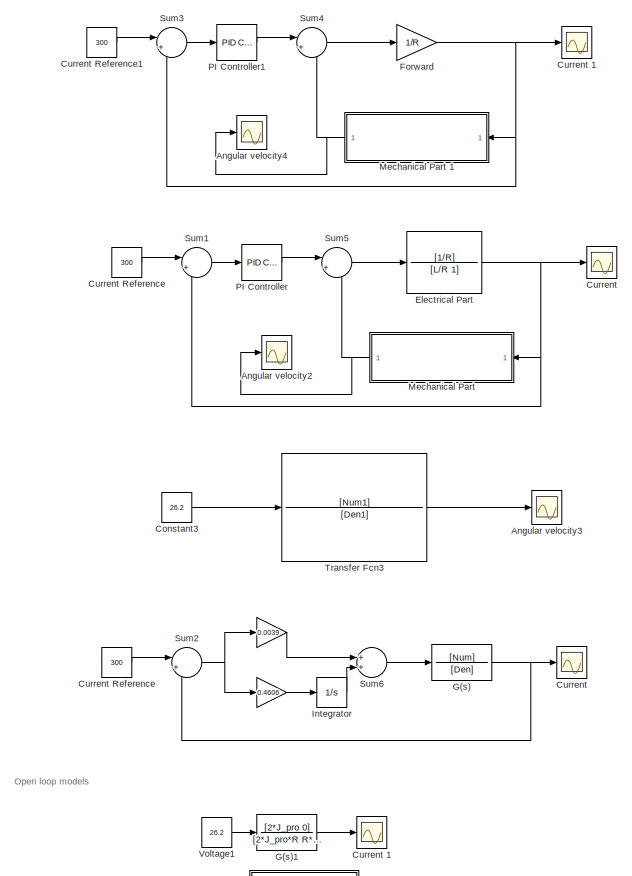
[diagram: root canvas - part 1/2, full width, top band]
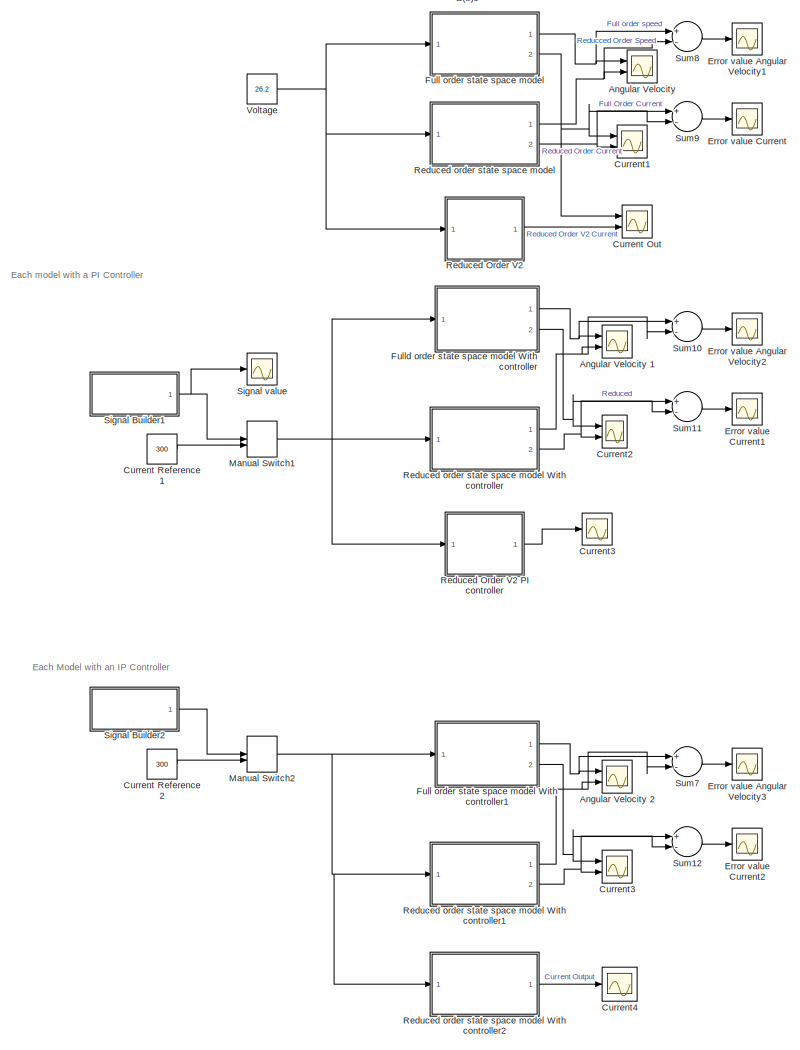
[diagram: root canvas - part 2/2, full width, bottom band]
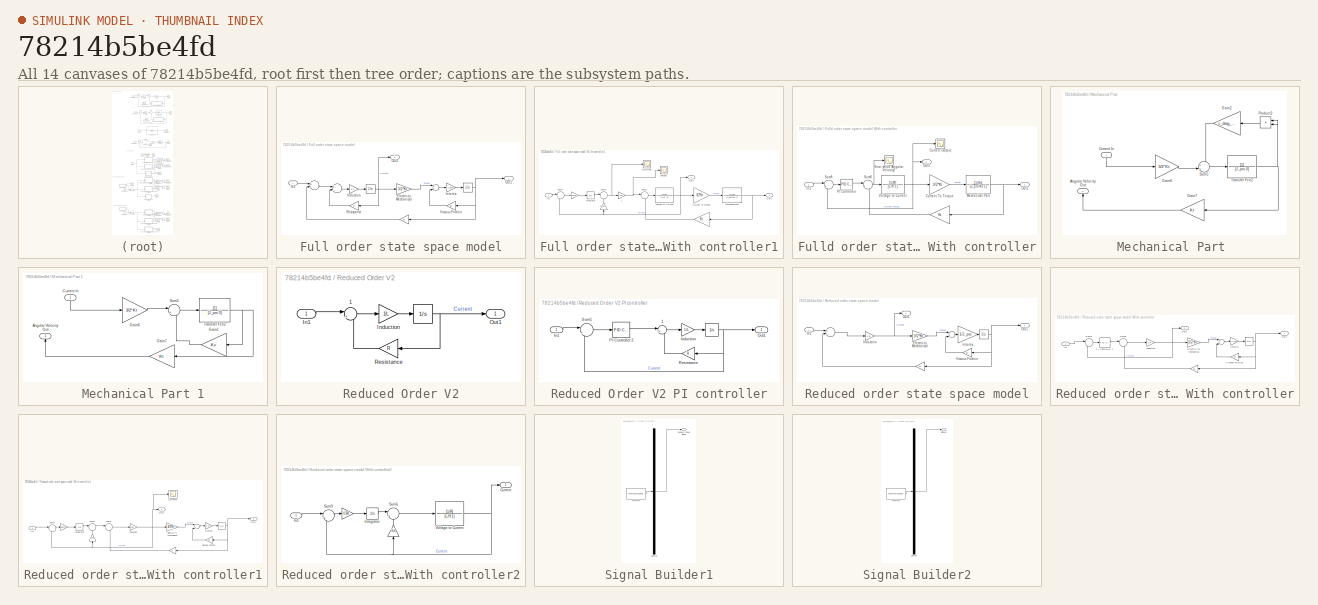
[diagram: thumbnail index - all 14 canvases of the model, root first then tree order]
MODEL slx_78214b5be4fd
KIND model
CONFIG AbsTol = auto
CONFIG FixedStep = 0.001
CONFIG MaxStep = auto
CONFIG MinStep = auto
CONFIG RelTol = 1e-3
CONFIG SampleTimeConstraint = Unconstrained
CONFIG Solver = FixedStepAuto
CONFIG SolverMode = Auto
CONFIG SolverName = FixedStepAuto
CONFIG StartTime = 0.0
CONFIG StopTime = 10
BLOCK [Gain]  
  Gain = 0.0039
  OutDataTypeStr = Inherit: Inherit via internal rule
  ParamDataTypeStr = Inherit: Inherit via internal rule
  SaturateOnIntegerOverflow = off
BLOCK [Scope]  Current3
  Ports = [1]
  ScopeSpecificationString = Simulink.scopes.TimeScopeBlockCfg('CurrentConfiguration', extmgr.ConfigurationSet(extmgr.Configuration('Core','General UI',true),extmgr.Configuration('Core','Source UI',true),extmgr.Configuration('Sources','WiredSimulink',true,'DataLoggingVariableName','ScopeData7'),extmgr.Configuration('Visuals','Time Domain',true,'SerializedDisplays',{struct('MinYLimReal','-14.83516','MaxYLimReal','328.84615','Y...<+1477ch>
BLOCK [Scope] Angular Velocity  
  NumInputPorts = 2
  Ports = [2]
  ScopeSpecificationString = Simulink.scopes.TimeScopeBlockCfg('CurrentConfiguration', extmgr.ConfigurationSet(extmgr.Configuration('Core','General UI',true,'FigureColor',[1 1 1]),extmgr.Configuration('Core','Source UI',true),extmgr.Configuration('Sources','WiredSimulink',true,'DataLoggingVariableName','ScopeData1'),extmgr.Configuration('Visuals','Time Domain',true,'SerializedDisplays',{struct('MinYLimReal','-13.43019','MaxYL...<+1726ch>
BLOCK [Scope] Angular Velocity 1
  NumInputPorts = 2
  Ports = [2]
  ScopeSpecificationString = Simulink.scopes.TimeScopeBlockCfg('CurrentConfiguration', extmgr.ConfigurationSet(extmgr.Configuration('Core','General UI',true),extmgr.Configuration('Core','Source UI',true),extmgr.Configuration('Sources','WiredSimulink',true,'DataLoggingVariableName','ScopeData1'),extmgr.Configuration('Visuals','Time Domain',true,'SerializedDisplays',{struct('MinYLimReal','-70.97575','MaxYLimReal','638.78175','Y...<+1527ch>
BLOCK [Scope] Angular Velocity 2
  NumInputPorts = 2
  Ports = [2]
  ScopeSpecificationString = Simulink.scopes.TimeScopeBlockCfg('CurrentConfiguration', extmgr.ConfigurationSet(extmgr.Configuration('Core','General UI',true),extmgr.Configuration('Core','Source UI',true),extmgr.Configuration('Sources','WiredSimulink',true,'DataLoggingVariableName','ScopeData1'),extmgr.Configuration('Visuals','Time Domain',true,'SerializedDisplays',{struct('MinYLimReal','-29.12331','MaxYLimReal','262.1098','YL...<+1501ch>
BLOCK [Scope] Angular velocity2
  Ports = [1]
  ScopeSpecificationString = Simulink.scopes.TimeScopeBlockCfg('CurrentConfiguration', extmgr.ConfigurationSet(extmgr.Configuration('Core','General UI',true),extmgr.Configuration('Core','Source UI',true),extmgr.Configuration('Sources','WiredSimulink',true,'DataLoggingVariableName','ScopeData7'),extmgr.Configuration('Visuals','Time Domain',true,'SerializedDisplays',{struct('MinYLimReal','-8.90635','MaxYLimReal','80.15715','YLa...<+1439ch>
BLOCK [Scope] Angular velocity3
  Ports = [1]
  ScopeSpecificationString = Simulink.scopes.TimeScopeBlockCfg('CurrentConfiguration', extmgr.ConfigurationSet(extmgr.Configuration('Core','General UI',true),extmgr.Configuration('Core','Source UI',true),extmgr.Configuration('Sources','WiredSimulink',true,'DataLoggingVariableName','ScopeData2'),extmgr.Configuration('Visuals','Time Domain',true,'SerializedDisplays',{struct('MinYLimReal','-466.71302','MaxYLimReal','4200.41714',...<+1496ch>
BLOCK [Scope] Angular velocity4
  Ports = [1]
  ScopeSpecificationString = C++SS(StrPVP('SaveName','ScopeData5'),StrPVP('LimitDataPoints','on'),StrPVP('DataFormat','Array'),StrPVP('Decimation','1'),StrPVP('BlockParamSampleInput','off'))
BLOCK [Constant] Constant3
  Value = 26.2
BLOCK [Scope] Current 
  Ports = [1]
  ScopeSpecificationString = Simulink.scopes.TimeScopeBlockCfg('CurrentConfiguration', extmgr.ConfigurationSet(extmgr.Configuration('Core','General UI',true),extmgr.Configuration('Core','Source UI',true),extmgr.Configuration('Sources','WiredSimulink',true,'DataLoggingVariableName','ScopeData1','DataLoggingLimitDataPoints',true,'DataLoggingSaveFormat','Array','DataLoggingDecimation','1','DataLoggingDecimateData',true),extmgr.C...<+1527ch>
BLOCK [Scope] Current 1
  Ports = [1]
  ScopeSpecificationString = C++SS(StrPVP('SaveName','ScopeData8'),StrPVP('LimitDataPoints','on'),StrPVP('DataFormat','Array'),StrPVP('Decimation','1'),StrPVP('BlockParamSampleInput','off'))
BLOCK [Scope] Current Out
  NumInputPorts = 2
  Ports = [2]
  ScopeSpecificationString = Simulink.scopes.TimeScopeBlockCfg('CurrentConfiguration', extmgr.ConfigurationSet(extmgr.Configuration('Core','General UI',true,'FigureColor',[1 1 1]),extmgr.Configuration('Core','Source UI',true),extmgr.Configuration('Sources','WiredSimulink',true,'DataLoggingVariableName','ScopeData6'),extmgr.Configuration('Visuals','Time Domain',true,'SerializedDisplays',{struct('MinYLimReal','-59.90528','MaxYL...<+1703ch>
BLOCK [Constant] Current Reference
  Value = 300
BLOCK [Constant] Current Reference 
  Value = 300
BLOCK [Constant] Current Reference 1
  Value = 300
BLOCK [Constant] Current Reference 2
  Value = 300
BLOCK [Constant] Current Reference1
  Value = 300
BLOCK [Scope] Current1
  NumInputPorts = 2
  Ports = [2]
  ScopeSpecificationString = Simulink.scopes.TimeScopeBlockCfg('CurrentConfiguration', extmgr.ConfigurationSet(extmgr.Configuration('Core','General UI',true,'FigureColor',[1 1 1]),extmgr.Configuration('Core','Source UI',true),extmgr.Configuration('Sources','WiredSimulink',true,'DataLoggingVariableName','ScopeData1'),extmgr.Configuration('Visuals','Time Domain',true,'SerializedDisplays',{struct('MinYLimReal','-55.79946','MaxYL...<+1694ch>
BLOCK [Scope] Current2
  NumInputPorts = 2
  Ports = [2]
  ScopeSpecificationString = Simulink.scopes.TimeScopeBlockCfg('CurrentConfiguration', extmgr.ConfigurationSet(extmgr.Configuration('Core','General UI',true),extmgr.Configuration('Core','Source UI',true),extmgr.Configuration('Sources','WiredSimulink',true,'DataLoggingVariableName','ScopeData2'),extmgr.Configuration('Visuals','Time Domain',true,'SerializedDisplays',{struct('MinYLimReal','-59.27537','MaxYLimReal','400.97136','Y...<+2155ch>
BLOCK [Scope] Current3
  NumInputPorts = 2
  Ports = [2]
  ScopeSpecificationString = Simulink.scopes.TimeScopeBlockCfg('CurrentConfiguration', extmgr.ConfigurationSet(extmgr.Configuration('Core','General UI',true),extmgr.Configuration('Core','Source UI',true),extmgr.Configuration('Sources','WiredSimulink',true,'DataLoggingVariableName','ScopeData2'),extmgr.Configuration('Visuals','Time Domain',true,'SerializedDisplays',{struct('MinYLimReal','-34.47602','MaxYLimReal','310.28415','Y...<+1585ch>
BLOCK [Scope] Current4
  Ports = [1]
  ScopeSpecificationString = Simulink.scopes.TimeScopeBlockCfg('CurrentConfiguration', extmgr.ConfigurationSet(extmgr.Configuration('Core','General UI',true,'FigureColor',[1 1 1]),extmgr.Configuration('Core','Source UI',true),extmgr.Configuration('Sources','WiredSimulink',true,'DataLoggingVariableName','ScopeData5'),extmgr.Configuration('Visuals','Time Domain',true,'SerializedDisplays',{struct('MinYLimReal','-37.5','MaxYLimRe...<+1641ch>
BLOCK [TransferFcn] Electrical Part
  Denominator = [L/R 1]
  Numerator = [1/R]
BLOCK [Scope] Error value Angular Velocity1
  Ports = [1]
  ScopeSpecificationString = Simulink.scopes.TimeScopeBlockCfg('CurrentConfiguration', extmgr.ConfigurationSet(extmgr.Configuration('Core','General UI',true),extmgr.Configuration('Core','Source UI',true),extmgr.Configuration('Sources','WiredSimulink',true,'DataLoggingVariableName','ScopeData3','DataLoggingLimitDataPoints',true,'DataLoggingSaveFormat','Array','DataLoggingDecimation','1','DataLoggingDecimateData',true),extmgr.C...<+1580ch>
BLOCK [Scope] Error value Angular Velocity2
  Ports = [1]
  ScopeSpecificationString = Simulink.scopes.TimeScopeBlockCfg('CurrentConfiguration', extmgr.ConfigurationSet(extmgr.Configuration('Core','General UI',true),extmgr.Configuration('Core','Source UI',true),extmgr.Configuration('Sources','WiredSimulink',true,'DataLoggingVariableName','ScopeData6','DataLoggingLimitDataPoints',true,'DataLoggingSaveFormat','Array','DataLoggingDecimation','1','DataLoggingDecimateData',true),extmgr.C...<+1516ch>
BLOCK [Scope] Error value Angular Velocity3
  Ports = [1]
  ScopeSpecificationString = Simulink.scopes.TimeScopeBlockCfg('CurrentConfiguration', extmgr.ConfigurationSet(extmgr.Configuration('Core','General UI',true),extmgr.Configuration('Core','Source UI',true),extmgr.Configuration('Sources','WiredSimulink',true,'DataLoggingVariableName','ScopeData3'),extmgr.Configuration('Visuals','Time Domain',true,'SerializedDisplays',{struct('MinYLimReal','-0.02945','MaxYLimReal','0.00327','YLab...<+1388ch>
BLOCK [Scope] Error value Current
  Ports = [1]
  ScopeSpecificationString = Simulink.scopes.TimeScopeBlockCfg('CurrentConfiguration', extmgr.ConfigurationSet(extmgr.Configuration('Core','General UI',true),extmgr.Configuration('Core','Source UI',true),extmgr.Configuration('Sources','WiredSimulink',true,'DataLoggingVariableName','ScopeData4','DataLoggingLimitDataPoints',true,'DataLoggingSaveFormat','Array','DataLoggingDecimation','1','DataLoggingDecimateData',true),extmgr.C...<+1571ch>
BLOCK [Scope] Error value Current1
  Ports = [1]
  ScopeSpecificationString = Simulink.scopes.TimeScopeBlockCfg('CurrentConfiguration', extmgr.ConfigurationSet(extmgr.Configuration('Core','General UI',true),extmgr.Configuration('Core','Source UI',true),extmgr.Configuration('Sources','WiredSimulink',true,'DataLoggingVariableName','ScopeData7','DataLoggingLimitDataPoints',true,'DataLoggingSaveFormat','Array','DataLoggingDecimation','1','DataLoggingDecimateData',true),extmgr.C...<+1514ch>
BLOCK [Scope] Error value Current2
  Ports = [1]
  ScopeSpecificationString = Simulink.scopes.TimeScopeBlockCfg('CurrentConfiguration', extmgr.ConfigurationSet(extmgr.Configuration('Core','General UI',true),extmgr.Configuration('Core','Source UI',true),extmgr.Configuration('Sources','WiredSimulink',true,'DataLoggingVariableName','ScopeData4'),extmgr.Configuration('Visuals','Time Domain',true,'SerializedDisplays',{struct('MinYLimReal','-26.46321','MaxYLimReal','16.23785','YL...<+1414ch>
BLOCK [Gain] Forward
  Gain = 1/R
  OutDataTypeStr = Inherit: Inherit via internal rule
  ParamDataTypeStr = Inherit: Inherit via internal rule
  SaturateOnIntegerOverflow = off
BLOCK [SubSystem] Full order state space model
  Ports = [1, 2]
  RequestExecContextInheritance = off
  Variant = off
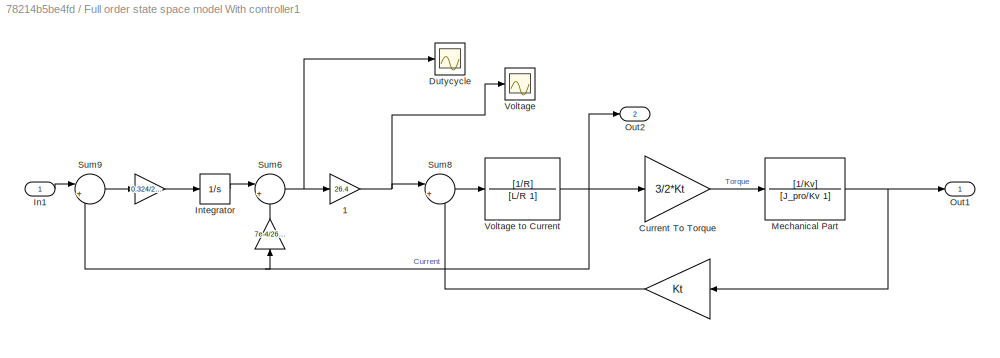
BLOCK [SubSystem] Full order state space model With controller1
  Ports = [1, 2]
  RequestExecContextInheritance = off
  Variant = off
BLOCK [Gain] Full order state space model With controller1/ 
  Gain = 7e-4/26.4
  OutDataTypeStr = Inherit: Inherit via internal rule
  ParamDataTypeStr = Inherit: Inherit via internal rule
  SaturateOnIntegerOverflow = off
BLOCK [Gain] Full order state space model With controller1/                
  Gain = Kt
  OutDataTypeStr = Inherit: Inherit via internal rule
  ParamDataTypeStr = Inherit: Inherit via internal rule
  SaturateOnIntegerOverflow = off
BLOCK [Gain] Full order state space model With controller1/ 1
  Gain = 26.4
  OutDataTypeStr = Inherit: Inherit via internal rule
  ParamDataTypeStr = Inherit: Inherit via internal rule
  SaturateOnIntegerOverflow = off
BLOCK [Gain] Full order state space model With controller1/Current To Torque 
  Gain = 3/2*Kt
  OutDataTypeStr = Inherit: Inherit via internal rule
  ParamDataTypeStr = Inherit: Inherit via internal rule
  SaturateOnIntegerOverflow = off
BLOCK [Scope] Full order state space model With controller1/Dutycycle
  Ports = [1]
  ScopeSpecificationString = Simulink.scopes.TimeScopeBlockCfg('CurrentConfiguration', extmgr.ConfigurationSet(extmgr.Configuration('Core','General UI',true),extmgr.Configuration('Core','Source UI',true),extmgr.Configuration('Sources','WiredSimulink',true,'DataLoggingVariableName','ScopeData3'),extmgr.Configuration('Visuals','Time Domain',true,'SerializedDisplays',{struct('MinYLimReal','-0.08224','MaxYLimReal','0.74019','YLab...<+1467ch>
BLOCK [Inport] Full order state space model With controller1/In1
  IconDisplay = Port number
BLOCK [Integrator] Full order state space model With controller1/Integrator
  Ports = [1, 1]
BLOCK [TransferFcn] Full order state space model With controller1/Mechanical Part 
  Denominator = [J_pro/Kv 1]
  Numerator = [1/Kv]
BLOCK [Outport] Full order state space model With controller1/Out1
  IconDisplay = Port number
BLOCK [Outport] Full order state space model With controller1/Out2
  IconDisplay = Port number
  Port = 2
BLOCK [Sum] Full order state space model With controller1/Sum6
  IconShape = round
  InputSameDT = off
  Inputs = |+-
  OutDataTypeStr = Inherit: Inherit via internal rule
  Ports = [2, 1]
  SaturateOnIntegerOverflow = off
BLOCK [Sum] Full order state space model With controller1/Sum8
  IconShape = round
  InputSameDT = off
  Inputs = |+-
  OutDataTypeStr = Inherit: Inherit via internal rule
  Ports = [2, 1]
  SaturateOnIntegerOverflow = off
BLOCK [Sum] Full order state space model With controller1/Sum9
  IconShape = round
  InputSameDT = off
  Inputs = |+-
  OutDataTypeStr = Inherit: Inherit via internal rule
  Ports = [2, 1]
  SaturateOnIntegerOverflow = off
BLOCK [Scope] Full order state space model With controller1/Voltage
  Ports = [1]
  ScopeSpecificationString = Simulink.scopes.TimeScopeBlockCfg('CurrentConfiguration', extmgr.ConfigurationSet(extmgr.Configuration('Core','General UI',true),extmgr.Configuration('Core','Source UI',true),extmgr.Configuration('Sources','WiredSimulink',true,'DataLoggingVariableName','ScopeData2'),extmgr.Configuration('Visuals','Time Domain',true,'SerializedDisplays',{struct('MinYLimReal','-2.37144','MaxYLimReal','21.34294','YLa...<+1479ch>
BLOCK [TransferFcn] Full order state space model With controller1/Voltage to Current 
  Denominator = [L/R 1]
  Numerator = [1/R]
BLOCK [Sum] Full order state space model/  
  InputSameDT = off
  Inputs = +-
  OutDataTypeStr = Inherit: Inherit via internal rule
  Ports = [2, 1]
  SaturateOnIntegerOverflow = off
BLOCK [Sum] Full order state space model/   
  InputSameDT = off
  Inputs = +-
  OutDataTypeStr = Inherit: Inherit via internal rule
  Ports = [2, 1]
  SaturateOnIntegerOverflow = off
BLOCK [Sum] Full order state space model/    
  InputSameDT = off
  Inputs = +-
  OutDataTypeStr = Inherit: Inherit via internal rule
  Ports = [2, 1]
  SaturateOnIntegerOverflow = off
BLOCK [Integrator] Full order state space model/                          
  Ports = [1, 1]
BLOCK [Gain] Full order state space model/                            
  Gain = Kt
  OutDataTypeStr = Inherit: Inherit via internal rule
  ParamDataTypeStr = Inherit: Inherit via internal rule
  SaturateOnIntegerOverflow = off
BLOCK [Integrator] Full order state space model/                                     
  Ports = [1, 1]
BLOCK [Gain] Full order state space model/Electric to Mechanical
  Gain = 3/2*Kt
  OutDataTypeStr = Inherit: Inherit via internal rule
  ParamDataTypeStr = Inherit: Inherit via internal rule
  SaturateOnIntegerOverflow = off
BLOCK [Inport] Full order state space model/In1
  IconDisplay = Port number
BLOCK [Gain] Full order state space model/Induction
  Gain = 1/L
  OutDataTypeStr = Inherit: Inherit via internal rule
  ParamDataTypeStr = Inherit: Inherit via internal rule
  SaturateOnIntegerOverflow = off
BLOCK [Gain] Full order state space model/Intertia
  Gain = 1/J_pro
  OutDataTypeStr = Inherit: Inherit via internal rule
  ParamDataTypeStr = Inherit: Inherit via internal rule
  SaturateOnIntegerOverflow = off
BLOCK [Outport] Full order state space model/Out1
  IconDisplay = Port number
BLOCK [Outport] Full order state space model/Out2
  IconDisplay = Port number
  Port = 2
BLOCK [Gain] Full order state space model/Resistance
  Gain = R
  OutDataTypeStr = Inherit: Inherit via internal rule
  ParamDataTypeStr = Inherit: Inherit via internal rule
  SaturateOnIntegerOverflow = off
BLOCK [Gain] Full order state space model/Viscous Friction
  Gain = Kv
  OutDataTypeStr = Inherit: Inherit via internal rule
  ParamDataTypeStr = Inherit: Inherit via internal rule
  SaturateOnIntegerOverflow = off
BLOCK [SubSystem] Fulld order state space model With controller
  Ports = [1, 2]
  RequestExecContextInheritance = off
  Variant = off
BLOCK [Gain] Fulld order state space model With controller/                
  Gain = Kt
  OutDataTypeStr = Inherit: Inherit via internal rule
  ParamDataTypeStr = Inherit: Inherit via internal rule
  SaturateOnIntegerOverflow = off
BLOCK [Scope] Fulld order state space model With controller/Current Output
  Ports = [1]
  ScopeSpecificationString = Simulink.scopes.TimeScopeBlockCfg('CurrentConfiguration', extmgr.ConfigurationSet(extmgr.Configuration('Core','General UI',true,'FigureColor',[1 1 1]),extmgr.Configuration('Core','Source UI',true),extmgr.Configuration('Sources','WiredSimulink',true,'DataLoggingVariableName','data5','DataLogging',true,'DataLoggingSaveFormat','Array'),extmgr.Configuration('Visuals','Time Domain',true,'SerializedDisp...<+1685ch>
BLOCK [Gain] Fulld order state space model With controller/Current To Torque 
  Gain = 3/2*Kt
  OutDataTypeStr = Inherit: Inherit via internal rule
  ParamDataTypeStr = Inherit: Inherit via internal rule
  SaturateOnIntegerOverflow = off
BLOCK [Scope] Fulld order state space model With controller/Error value Angular Velocity2
  Ports = [1]
  ScopeSpecificationString = Simulink.scopes.TimeScopeBlockCfg('CurrentConfiguration', extmgr.ConfigurationSet(extmgr.Configuration('Core','General UI',true),extmgr.Configuration('Core','Source UI',true),extmgr.Configuration('Sources','WiredSimulink',true,'DataLoggingVariableName','ScopeData1'),extmgr.Configuration('Visuals','Time Domain',true,'SerializedDisplays',{struct('MinYLimReal','1.74248','MaxYLimReal','3.50639','YLabe...<+1469ch>
BLOCK [Inport] Fulld order state space model With controller/In1
  IconDisplay = Port number
BLOCK [TransferFcn] Fulld order state space model With controller/Mechanical Part 
  Denominator = [J_pro/Kv 1]
  Numerator = [1/Kv]
BLOCK [Outport] Fulld order state space model With controller/Out1
  IconDisplay = Port number
BLOCK [Outport] Fulld order state space model With controller/Out2
  IconDisplay = Port number
  Port = 2
BLOCK [Reference] Fulld order state space model With controller/PI Controller   REF=simulink/Continuous/PID Controller
  Ports = [1, 1]
  SourceBlock = simulink/Continuous/PID Controller
  SourceType = PID 1dof
BLOCK [Sum] Fulld order state space model With controller/Sum8
  IconShape = round
  InputSameDT = off
  Inputs = |+-
  OutDataTypeStr = Inherit: Inherit via internal rule
  Ports = [2, 1]
  SaturateOnIntegerOverflow = off
BLOCK [Sum] Fulld order state space model With controller/Sum9
  IconShape = round
  InputSameDT = off
  Inputs = |+-
  OutDataTypeStr = Inherit: Inherit via internal rule
  Ports = [2, 1]
  SaturateOnIntegerOverflow = off
BLOCK [TransferFcn] Fulld order state space model With controller/Voltage to Current 
  Denominator = [L/R 1]
  Numerator = [1/R]
BLOCK [TransferFcn] G(s)
  Denominator = [Den]
  Numerator = [Num]
BLOCK [TransferFcn] G(s)1
  Denominator = [2*J_pro*R R*3*Kt^2+R*2*Kv]
  Numerator = [2*J_pro 0]
BLOCK [Integrator] Integrator
  Ports = [1, 1]
BLOCK [ManualSwitch] Manual Switch1
BLOCK [ManualSwitch] Manual Switch2
BLOCK [SubSystem] Mechanical Part 
  Ports = [1, 1]
  RequestExecContextInheritance = off
  Variant = off
BLOCK [Outport] Mechanical Part /Angular Velocity Out
  IconDisplay = Port number
BLOCK [Inport] Mechanical Part /Current In
  IconDisplay = Port number
BLOCK [Gain] Mechanical Part /Gain2
  Gain = c_drag_pro
  OutDataTypeStr = Inherit: Inherit via internal rule
  ParamDataTypeStr = Inherit: Inherit via internal rule
  SaturateOnIntegerOverflow = off
BLOCK [Gain] Mechanical Part /Gain6
  Gain = 3/2*Kt
  OutDataTypeStr = Inherit: Inherit via internal rule
  ParamDataTypeStr = Inherit: Inherit via internal rule
  SaturateOnIntegerOverflow = off
BLOCK [Gain] Mechanical Part /Gain7
  Gain = Kt
  OutDataTypeStr = Inherit: Inherit via internal rule
  ParamDataTypeStr = Inherit: Inherit via internal rule
  SaturateOnIntegerOverflow = off
BLOCK [Product] Mechanical Part /Product2
  InputSameDT = off
  OutDataTypeStr = Inherit: Inherit via internal rule
  Ports = [2, 1]
  RndMeth = Floor
  SaturateOnIntegerOverflow = off
BLOCK [Sum] Mechanical Part /Sum5
  IconShape = round
  InputSameDT = off
  Inputs = ++|
  OutDataTypeStr = Inherit: Inherit via internal rule
  Ports = [2, 1]
  SaturateOnIntegerOverflow = off
BLOCK [TransferFcn] Mechanical Part /Transfer Fcn2
  Denominator = [J_pro 0]
BLOCK [SubSystem] Mechanical Part 1
  Ports = [1, 1]
  RequestExecContextInheritance = off
  Variant = off
BLOCK [Outport] Mechanical Part 1/Angular Velocity Out
  IconDisplay = Port number
BLOCK [Inport] Mechanical Part 1/Current In
  IconDisplay = Port number
BLOCK [Gain] Mechanical Part 1/Gain1
  Gain = Kv
  OutDataTypeStr = Inherit: Inherit via internal rule
  ParamDataTypeStr = Inherit: Inherit via internal rule
  SaturateOnIntegerOverflow = off
BLOCK [Gain] Mechanical Part 1/Gain6
  Gain = 3/2*Kt
  OutDataTypeStr = Inherit: Inherit via internal rule
  ParamDataTypeStr = Inherit: Inherit via internal rule
  SaturateOnIntegerOverflow = off
BLOCK [Gain] Mechanical Part 1/Gain7
  Gain = Kt
  OutDataTypeStr = Inherit: Inherit via internal rule
  ParamDataTypeStr = Inherit: Inherit via internal rule
  SaturateOnIntegerOverflow = off
BLOCK [Sum] Mechanical Part 1/Sum5
  IconShape = round
  InputSameDT = off
  Inputs = |+-
  OutDataTypeStr = Inherit: Inherit via internal rule
  Ports = [2, 1]
  SaturateOnIntegerOverflow = off
BLOCK [TransferFcn] Mechanical Part 1/Transfer Fcn2
  Denominator = [J_pro 0]
BLOCK [Reference] PI Controller  REF=simulink/Continuous/PID Controller
  Ports = [1, 1]
  SourceBlock = simulink/Continuous/PID Controller
  SourceType = PID 1dof
BLOCK [Reference] PI Controller1  REF=simulink/Continuous/PID Controller
  Ports = [1, 1]
  SourceBlock = simulink/Continuous/PID Controller
  SourceType = PID 1dof
BLOCK [SubSystem] Reduced Order V2
  Ports = [1, 1]
  RequestExecContextInheritance = off
  Variant = off
BLOCK [SubSystem] Reduced Order V2 PI controller
  Ports = [1, 1]
  RequestExecContextInheritance = off
  Variant = off
BLOCK [Integrator] Reduced Order V2 PI controller/               
  Ports = [1, 1]
BLOCK [Sum] Reduced Order V2 PI controller/     1
  IconShape = round
  InputSameDT = off
  Inputs = |+-
  OutDataTypeStr = Inherit: Inherit via internal rule
  Ports = [2, 1]
  SaturateOnIntegerOverflow = off
BLOCK [Inport] Reduced Order V2 PI controller/In1
  IconDisplay = Port number
BLOCK [Gain] Reduced Order V2 PI controller/Induction  
  Gain = 1/L
  OutDataTypeStr = Inherit: Inherit via internal rule
  ParamDataTypeStr = Inherit: Inherit via internal rule
  SaturateOnIntegerOverflow = off
BLOCK [Outport] Reduced Order V2 PI controller/Out1
  IconDisplay = Port number
BLOCK [Reference] Reduced Order V2 PI controller/PI Controller 2  REF=simulink/Continuous/PID Controller
  Ports = [1, 1]
  SourceBlock = simulink/Continuous/PID Controller
  SourceType = PID 1dof
BLOCK [Gain] Reduced Order V2 PI controller/Resistance  
  Gain = R
  OutDataTypeStr = Inherit: Inherit via internal rule
  ParamDataTypeStr = Inherit: Inherit via internal rule
  SaturateOnIntegerOverflow = off
BLOCK [Sum] Reduced Order V2 PI controller/Sum1
  IconShape = round
  InputSameDT = off
  Inputs = |+-
  OutDataTypeStr = Inherit: Inherit via internal rule
  Ports = [2, 1]
  SaturateOnIntegerOverflow = off
BLOCK [Integrator] Reduced Order V2/               
  Ports = [1, 1]
BLOCK [Sum] Reduced Order V2/     1
  IconShape = round
  InputSameDT = off
  Inputs = |+-
  OutDataTypeStr = Inherit: Inherit via internal rule
  Ports = [2, 1]
  SaturateOnIntegerOverflow = off
BLOCK [Inport] Reduced Order V2/In1
  IconDisplay = Port number
BLOCK [Gain] Reduced Order V2/Induction  
  Gain = 1/L
  OutDataTypeStr = Inherit: Inherit via internal rule
  ParamDataTypeStr = Inherit: Inherit via internal rule
  SaturateOnIntegerOverflow = off
BLOCK [Outport] Reduced Order V2/Out1
  IconDisplay = Port number
BLOCK [Gain] Reduced Order V2/Resistance  
  Gain = R
  OutDataTypeStr = Inherit: Inherit via internal rule
  ParamDataTypeStr = Inherit: Inherit via internal rule
  SaturateOnIntegerOverflow = off
BLOCK [SubSystem] Reduced order state space model
  Ports = [1, 2]
  RequestExecContextInheritance = off
  Variant = off
BLOCK [SubSystem] Reduced order state space model With controller
  Ports = [1, 2]
  RequestExecContextInheritance = off
  Variant = off
BLOCK [Sum] Reduced order state space model With controller/    
  InputSameDT = off
  Inputs = +-
  OutDataTypeStr = Inherit: Inherit via internal rule
  Ports = [2, 1]
  SaturateOnIntegerOverflow = off
BLOCK [Gain] Reduced order state space model With controller/                            
  Gain = Kt
  OutDataTypeStr = Inherit: Inherit via internal rule
  ParamDataTypeStr = Inherit: Inherit via internal rule
  SaturateOnIntegerOverflow = off
BLOCK [Integrator] Reduced order state space model With controller/                                     
  Ports = [1, 1]
BLOCK [Gain] Reduced order state space model With controller/Electric to Mechanical
  Gain = 3/2*Kt
  OutDataTypeStr = Inherit: Inherit via internal rule
  ParamDataTypeStr = Inherit: Inherit via internal rule
  SaturateOnIntegerOverflow = off
BLOCK [Inport] Reduced order state space model With controller/In1
  IconDisplay = Port number
BLOCK [Gain] Reduced order state space model With controller/Induction
  Gain = 1/R
  OutDataTypeStr = Inherit: Inherit via internal rule
  ParamDataTypeStr = Inherit: Inherit via internal rule
  SaturateOnIntegerOverflow = off
BLOCK [Gain] Reduced order state space model With controller/Intertia
  Gain = 1/J_pro
  OutDataTypeStr = Inherit: Inherit via internal rule
  ParamDataTypeStr = Inherit: Inherit via internal rule
  SaturateOnIntegerOverflow = off
BLOCK [Outport] Reduced order state space model With controller/Out1
  IconDisplay = Port number
BLOCK [Outport] Reduced order state space model With controller/Out2
  IconDisplay = Port number
  Port = 2
BLOCK [Reference] Reduced order state space model With controller/PI Controller 1  REF=simulink/Continuous/PID Controller
  Ports = [1, 1]
  SourceBlock = simulink/Continuous/PID Controller
  SourceType = PID 1dof
BLOCK [Sum] Reduced order state space model With controller/Sum8
  IconShape = round
  InputSameDT = off
  Inputs = |+-
  OutDataTypeStr = Inherit: Inherit via internal rule
  Ports = [2, 1]
  SaturateOnIntegerOverflow = off
BLOCK [Sum] Reduced order state space model With controller/Sum9
  IconShape = round
  InputSameDT = off
  Inputs = |+-
  OutDataTypeStr = Inherit: Inherit via internal rule
  Ports = [2, 1]
  SaturateOnIntegerOverflow = off
BLOCK [Gain] Reduced order state space model With controller/Viscous Friction
  Gain = Kv
  OutDataTypeStr = Inherit: Inherit via internal rule
  ParamDataTypeStr = Inherit: Inherit via internal rule
  SaturateOnIntegerOverflow = off
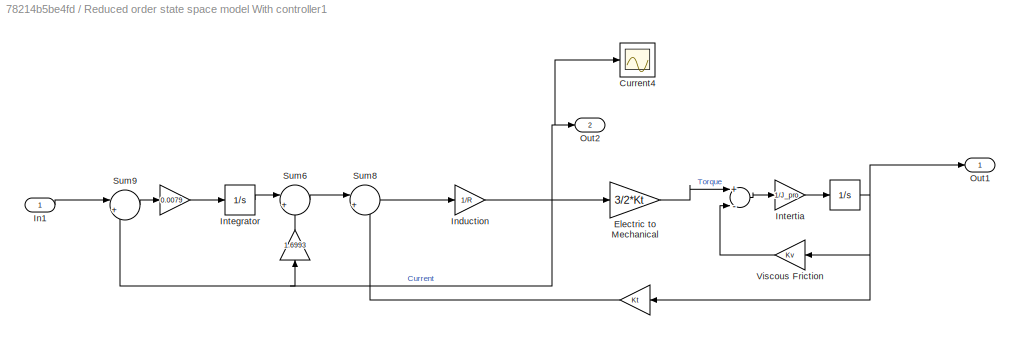
BLOCK [SubSystem] Reduced order state space model With controller1
  Ports = [1, 2]
  RequestExecContextInheritance = off
  Variant = off
BLOCK [Gain] Reduced order state space model With controller1/ 
  Gain = 1.6993
  OutDataTypeStr = Inherit: Inherit via internal rule
  ParamDataTypeStr = Inherit: Inherit via internal rule
  SaturateOnIntegerOverflow = off
BLOCK [Sum] Reduced order state space model With controller1/    
  InputSameDT = off
  Inputs = +-
  OutDataTypeStr = Inherit: Inherit via internal rule
  Ports = [2, 1]
  SaturateOnIntegerOverflow = off
BLOCK [Gain] Reduced order state space model With controller1/                            
  Gain = Kt
  OutDataTypeStr = Inherit: Inherit via internal rule
  ParamDataTypeStr = Inherit: Inherit via internal rule
  SaturateOnIntegerOverflow = off
BLOCK [Integrator] Reduced order state space model With controller1/                                     
  Ports = [1, 1]
BLOCK [Scope] Reduced order state space model With controller1/Current4
  Ports = [1]
  ScopeSpecificationString = Simulink.scopes.TimeScopeBlockCfg('CurrentConfiguration', extmgr.ConfigurationSet(extmgr.Configuration('Core','General UI',true),extmgr.Configuration('Core','Source UI',true),extmgr.Configuration('Sources','WiredSimulink',true,'DataLoggingVariableName','ScopeData4'),extmgr.Configuration('Visuals','Time Domain',true,'SerializedDisplays',{struct('MinYLimReal','-0.34003','MaxYLimReal','3.06024','YLab...<+1471ch>
BLOCK [Gain] Reduced order state space model With controller1/Electric to Mechanical
  Gain = 3/2*Kt
  OutDataTypeStr = Inherit: Inherit via internal rule
  ParamDataTypeStr = Inherit: Inherit via internal rule
  SaturateOnIntegerOverflow = off
BLOCK [Inport] Reduced order state space model With controller1/In1
  IconDisplay = Port number
BLOCK [Gain] Reduced order state space model With controller1/Induction
  Gain = 1/R
  OutDataTypeStr = Inherit: Inherit via internal rule
  ParamDataTypeStr = Inherit: Inherit via internal rule
  SaturateOnIntegerOverflow = off
BLOCK [Integrator] Reduced order state space model With controller1/Integrator
  Ports = [1, 1]
BLOCK [Gain] Reduced order state space model With controller1/Intertia
  Gain = 1/J_pro
  OutDataTypeStr = Inherit: Inherit via internal rule
  ParamDataTypeStr = Inherit: Inherit via internal rule
  SaturateOnIntegerOverflow = off
BLOCK [Outport] Reduced order state space model With controller1/Out1
  IconDisplay = Port number
BLOCK [Outport] Reduced order state space model With controller1/Out2
  IconDisplay = Port number
  Port = 2
BLOCK [Sum] Reduced order state space model With controller1/Sum6
  IconShape = round
  InputSameDT = off
  Inputs = |+-
  OutDataTypeStr = Inherit: Inherit via internal rule
  Ports = [2, 1]
  SaturateOnIntegerOverflow = off
BLOCK [Sum] Reduced order state space model With controller1/Sum8
  IconShape = round
  InputSameDT = off
  Inputs = |+-
  OutDataTypeStr = Inherit: Inherit via internal rule
  Ports = [2, 1]
  SaturateOnIntegerOverflow = off
BLOCK [Sum] Reduced order state space model With controller1/Sum9
  IconShape = round
  InputSameDT = off
  Inputs = |+-
  OutDataTypeStr = Inherit: Inherit via internal rule
  Ports = [2, 1]
  SaturateOnIntegerOverflow = off
BLOCK [Gain] Reduced order state space model With controller1/Viscous Friction
  Gain = Kv
  OutDataTypeStr = Inherit: Inherit via internal rule
  ParamDataTypeStr = Inherit: Inherit via internal rule
  SaturateOnIntegerOverflow = off
BLOCK [SubSystem] Reduced order state space model With controller2
  Ports = [1, 1]
  RequestExecContextInheritance = off
  Variant = off
BLOCK [Gain] Reduced order state space model With controller2/ 
  Gain = 7e-4
  OutDataTypeStr = Inherit: Inherit via internal rule
  ParamDataTypeStr = Inherit: Inherit via internal rule
  SaturateOnIntegerOverflow = off
BLOCK [Outport] Reduced order state space model With controller2/Current
  IconDisplay = Port number
BLOCK [Inport] Reduced order state space model With controller2/In1
  IconDisplay = Port number
BLOCK [Integrator] Reduced order state space model With controller2/Integrator
  Ports = [1, 1]
BLOCK [Sum] Reduced order state space model With controller2/Sum6
  IconShape = round
  InputSameDT = off
  Inputs = |+-
  OutDataTypeStr = Inherit: Inherit via internal rule
  Ports = [2, 1]
  SaturateOnIntegerOverflow = off
BLOCK [Sum] Reduced order state space model With controller2/Sum9
  IconShape = round
  InputSameDT = off
  Inputs = |+-
  OutDataTypeStr = Inherit: Inherit via internal rule
  Ports = [2, 1]
  SaturateOnIntegerOverflow = off
BLOCK [TransferFcn] Reduced order state space model With controller2/Voltage to Current 
  Denominator = [L/R 1]
  Numerator = [1/R]
BLOCK [Sum] Reduced order state space model/  
  InputSameDT = off
  Inputs = +-
  OutDataTypeStr = Inherit: Inherit via internal rule
  Ports = [2, 1]
  SaturateOnIntegerOverflow = off
BLOCK [Sum] Reduced order state space model/    
  InputSameDT = off
  Inputs = +-
  OutDataTypeStr = Inherit: Inherit via internal rule
  Ports = [2, 1]
  SaturateOnIntegerOverflow = off
BLOCK [Gain] Reduced order state space model/                            
  Gain = Kt
  OutDataTypeStr = Inherit: Inherit via internal rule
  ParamDataTypeStr = Inherit: Inherit via internal rule
  SaturateOnIntegerOverflow = off
BLOCK [Integrator] Reduced order state space model/                                     
  Ports = [1, 1]
BLOCK [Gain] Reduced order state space model/Electric to Mechanical
  Gain = 3/2*Kt
  OutDataTypeStr = Inherit: Inherit via internal rule
  ParamDataTypeStr = Inherit: Inherit via internal rule
  SaturateOnIntegerOverflow = off
BLOCK [Inport] Reduced order state space model/In1
  IconDisplay = Port number
BLOCK [Gain] Reduced order state space model/Induction
  Gain = 1/R
  OutDataTypeStr = Inherit: Inherit via internal rule
  ParamDataTypeStr = Inherit: Inherit via internal rule
  SaturateOnIntegerOverflow = off
BLOCK [Gain] Reduced order state space model/Intertia
  Gain = 1/J_pro
  OutDataTypeStr = Inherit: Inherit via internal rule
  ParamDataTypeStr = Inherit: Inherit via internal rule
  SaturateOnIntegerOverflow = off
BLOCK [Outport] Reduced order state space model/Out1
  IconDisplay = Port number
BLOCK [Outport] Reduced order state space model/Out2
  IconDisplay = Port number
  Port = 2
BLOCK [Gain] Reduced order state space model/Viscous Friction
  Gain = Kv
  OutDataTypeStr = Inherit: Inherit via internal rule
  ParamDataTypeStr = Inherit: Inherit via internal rule
  SaturateOnIntegerOverflow = off
BLOCK [SubSystem] Signal Builder1
  ClipboardFcn = sigbuilder_block('clipboard');
  CloseFcn = sigbuilder_block('close');
  ContinueFcn = sigbuilder_block('continue');
  CopyFcn = sigbuilder_block('copy');
  DeleteFcn = sigbuilder_block('delete');
  LoadFcn = sigbuilder_block('load');
  MaskHideContents = on
  ModelCloseFcn = sigbuilder_block('modelClose');
  NameChangeFcn = sigbuilder_block('namechange');
  OpenFcn = sigbuilder_block('open',[595.8 225 550.8 361.2 ]);
  PauseFcn = sigbuilder_block('pause');
  Ports = [0, 1]
  PreSaveFcn = sigbuilder_block('preSave');
  RequestExecContextInheritance = off
  StartFcn = sigbuilder_block('start');
  StopFcn = sigbuilder_block('stop');
  Tag = STV Subsys
  Variant = off
BLOCK [Demux] Signal Builder1/Demux
  Outputs = 1
  Ports = [1, 1]
  Tag = STV Demux
BLOCK [FromWorkspace] Signal Builder1/FromWs
  SampleTime = 0
  Tag = STV FromWs
  VariableName = tuvar
  ZeroCross = on
BLOCK [Outport] Signal Builder1/Speeder Pedal Signal
  IconDisplay = Port number
  Tag = STV Outport
BLOCK [SubSystem] Signal Builder2
  ClipboardFcn = sigbuilder_block('clipboard');
  CloseFcn = sigbuilder_block('close');
  ContinueFcn = sigbuilder_block('continue');
  CopyFcn = sigbuilder_block('copy');
  DeleteFcn = sigbuilder_block('delete');
  LoadFcn = sigbuilder_block('load');
  MaskHideContents = on
  ModelCloseFcn = sigbuilder_block('modelClose');
  NameChangeFcn = sigbuilder_block('namechange');
  OpenFcn = sigbuilder_block('open',[445.2 789 550.8 400.2 ]);
  PauseFcn = sigbuilder_block('pause');
  Ports = [0, 1]
  PreSaveFcn = sigbuilder_block('preSave');
  RequestExecContextInheritance = off
  StartFcn = sigbuilder_block('start');
  StopFcn = sigbuilder_block('stop');
  Tag = STV Subsys
  Variant = off
BLOCK [Demux] Signal Builder2/Demux
  Outputs = 1
  Ports = [1, 1]
  Tag = STV Demux
BLOCK [FromWorkspace] Signal Builder2/FromWs
  SampleTime = 0
  Tag = STV FromWs
  VariableName = tuvar
  ZeroCross = on
BLOCK [Outport] Signal Builder2/Signal 1
  IconDisplay = Port number
  Tag = STV Outport
BLOCK [Scope] Signal value
  Ports = [1]
  ScopeSpecificationString = Simulink.scopes.TimeScopeBlockCfg('CurrentConfiguration', extmgr.ConfigurationSet(extmgr.Configuration('Core','General UI',true,'FigureColor',[1 1 1]),extmgr.Configuration('Core','Source UI',true),extmgr.Configuration('Sources','WiredSimulink',true,'DataLoggingVariableName','ScopeData6','DataLoggingSaveFormat','Array','DataLoggingDecimation','1','DataLoggingDecimateData',true),extmgr.Configuration...<+1633ch>
BLOCK [Sum] Sum1
  IconShape = round
  InputSameDT = off
  Inputs = |+-
  OutDataTypeStr = Inherit: Inherit via internal rule
  Ports = [2, 1]
  SaturateOnIntegerOverflow = off
BLOCK [Sum] Sum10
  InputSameDT = off
  Inputs = +-
  OutDataTypeStr = Inherit: Inherit via internal rule
  Ports = [2, 1]
  SaturateOnIntegerOverflow = off
BLOCK [Sum] Sum11
  InputSameDT = off
  Inputs = +-
  OutDataTypeStr = Inherit: Inherit via internal rule
  Ports = [2, 1]
  SaturateOnIntegerOverflow = off
BLOCK [Sum] Sum12
  InputSameDT = off
  Inputs = +-
  OutDataTypeStr = Inherit: Inherit via internal rule
  Ports = [2, 1]
  SaturateOnIntegerOverflow = off
BLOCK [Sum] Sum2
  IconShape = round
  InputSameDT = off
  Inputs = |+-
  OutDataTypeStr = Inherit: Inherit via internal rule
  Ports = [2, 1]
  SaturateOnIntegerOverflow = off
BLOCK [Sum] Sum3
  IconShape = round
  InputSameDT = off
  Inputs = |+-
  OutDataTypeStr = Inherit: Inherit via internal rule
  Ports = [2, 1]
  SaturateOnIntegerOverflow = off
BLOCK [Sum] Sum4
  IconShape = round
  InputSameDT = off
  Inputs = |+-
  OutDataTypeStr = Inherit: Inherit via internal rule
  Ports = [2, 1]
  SaturateOnIntegerOverflow = off
BLOCK [Sum] Sum5
  IconShape = round
  InputSameDT = off
  Inputs = |+-
  OutDataTypeStr = Inherit: Inherit via internal rule
  Ports = [2, 1]
  SaturateOnIntegerOverflow = off
BLOCK [Sum] Sum6
  IconShape = round
  InputSameDT = off
  OutDataTypeStr = Inherit: Inherit via internal rule
  Ports = [2, 1]
  SaturateOnIntegerOverflow = off
BLOCK [Sum] Sum7
  InputSameDT = off
  Inputs = +-
  OutDataTypeStr = Inherit: Inherit via internal rule
  Ports = [2, 1]
  SaturateOnIntegerOverflow = off
BLOCK [Sum] Sum8
  InputSameDT = off
  Inputs = +-
  OutDataTypeStr = Inherit: Inherit via internal rule
  Ports = [2, 1]
  SaturateOnIntegerOverflow = off
BLOCK [Sum] Sum9
  InputSameDT = off
  Inputs = +-
  OutDataTypeStr = Inherit: Inherit via internal rule
  Ports = [2, 1]
  SaturateOnIntegerOverflow = off
BLOCK [TransferFcn] Transfer Fcn3
  Denominator = [Den1]
  Numerator = [Num1]
BLOCK [Constant] Voltage
  Value = 26.2
BLOCK [Constant] Voltage1
  Value = 26.2
ANNOTATION (root): Each Model with an IP Controller
ANNOTATION (root): Each model with a PI Controller
ANNOTATION (root): Open loop models
NET  :1 -> Integrator:1, Sum6:1
LINE Constant3:1 -> Transfer Fcn3:1
LINE Current Reference 1:1 -> Manual Switch1:2
LINE Current Reference 2:1 -> Manual Switch2:2
LINE Current Reference :1 -> Sum2:1
LINE Current Reference1:1 -> Sum3:1
LINE Current Reference:1 -> Sum1:1
NET Electrical Part:1 -> Current :1, Mechanical Part :1, Sum1:2
NET Forward:1 -> Current 1:1, Mechanical Part 1:1, Sum3:2
LINE Full order state space model With controller1/                :1 -> Full order state space model With controller1/Sum8:2
NET Full order state space model With controller1/ 1:1 -> Full order state space model With controller1/Sum8:1, Full order state space model With controller1/Voltage:1
NET Full order state space model With controller1/ :1 -> Full order state space model With controller1/Integrator:1, Full order state space model With controller1/Sum6:2
LINE Full order state space model With controller1/Current To Torque :1 -> Full order state space model With controller1/Mechanical Part :1
LINE Full order state space model With controller1/In1:1 -> Full order state space model With controller1/Sum9:1
LINE Full order state space model With controller1/Integrator:1 -> Full order state space model With controller1/Sum6:1
NET Full order state space model With controller1/Mechanical Part :1 -> Full order state space model With controller1/                :1, Full order state space model With controller1/Out1:1
NET Full order state space model With controller1/Sum6:1 -> Full order state space model With controller1/ 1:1, Full order state space model With controller1/Dutycycle:1
LINE Full order state space model With controller1/Sum8:1 -> Full order state space model With controller1/Voltage to Current :1
LINE Full order state space model With controller1/Sum9:1 -> Full order state space model With controller1/ :1
NET Full order state space model With controller1/Voltage to Current :1 -> Full order state space model With controller1/ :1, Full order state space model With controller1/Current To Torque :1, Full order state space model With controller1/Out2:1, Full order state space model With controller1/Sum9:2
NET Full order state space model With controller1:1 -> Angular Velocity 2:1, Sum7:1
NET Full order state space model With controller1:2 -> Current3:1, Sum12:1
NET Full order state space model/                                     :1 -> Full order state space model/                            :1, Full order state space model/Out1:1, Full order state space model/Viscous Friction:1
LINE Full order state space model/                            :1 -> Full order state space model/  :2
NET Full order state space model/                          :1 -> Full order state space model/Electric to Mechanical:1, Full order state space model/Out2:1, Full order state space model/Resistance:1
LINE Full order state space model/    :1 -> Full order state space model/Intertia:1
LINE Full order state space model/   :1 -> Full order state space model/Induction:1
LINE Full order state space model/  :1 -> Full order state space model/   :1
LINE Full order state space model/Electric to Mechanical:1 -> Full order state space model/    :1
LINE Full order state space model/In1:1 -> Full order state space model/  :1
LINE Full order state space model/Induction:1 -> Full order state space model/                          :1
LINE Full order state space model/Intertia:1 -> Full order state space model/                                     :1
LINE Full order state space model/Resistance:1 -> Full order state space model/   :2
LINE Full order state space model/Viscous Friction:1 -> Full order state space model/    :2
NET Full order state space model:1 -> Angular Velocity  :1, Sum8:1
NET Full order state space model:2 -> Current Out:1, Current1:1, Sum9:1
LINE Fulld order state space model With controller/                :1 -> Fulld order state space model With controller/Sum8:2
LINE Fulld order state space model With controller/Current To Torque :1 -> Fulld order state space model With controller/Mechanical Part :1
LINE Fulld order state space model With controller/In1:1 -> Fulld order state space model With controller/Sum9:1
NET Fulld order state space model With controller/Mechanical Part :1 -> Fulld order state space model With controller/                :1, Fulld order state space model With controller/Out1:1
LINE Fulld order state space model With controller/PI Controller :1 -> Fulld order state space model With controller/Sum8:1
NET Fulld order state space model With controller/Sum8:1 -> Fulld order state space model With controller/Error value Angular Velocity2:1, Fulld order state space model With controller/Voltage to Current :1
LINE Fulld order state space model With controller/Sum9:1 -> Fulld order state space model With controller/PI Controller :1
NET Fulld order state space model With controller/Voltage to Current :1 -> Fulld order state space model With controller/Current Output:1, Fulld order state space model With controller/Current To Torque :1, Fulld order state space model With controller/Out2:1, Fulld order state space model With controller/Sum9:2
NET Fulld order state space model With controller:1 -> Angular Velocity 1:1, Sum10:1
NET Fulld order state space model With controller:2 -> Current2:1, Sum11:1
LINE G(s)1:1 -> Current 1:1
NET G(s):1 -> Current :1, Sum2:2
LINE Integrator:1 -> Sum6:2
NET Manual Switch1:1 -> Fulld order state space model With controller:1, Reduced Order V2 PI controller:1, Reduced order state space model With controller:1
NET Manual Switch2:1 -> Full order state space model With controller1:1, Reduced order state space model With controller1:1, Reduced order state space model With controller2:1
LINE Mechanical Part /Current In:1 -> Mechanical Part /Gain6:1
LINE Mechanical Part /Gain2:1 -> Mechanical Part /Sum5:1
LINE Mechanical Part /Gain6:1 -> Mechanical Part /Sum5:2
LINE Mechanical Part /Gain7:1 -> Mechanical Part /Angular Velocity Out:1
LINE Mechanical Part /Product2:1 -> Mechanical Part /Gain2:1
LINE Mechanical Part /Sum5:1 -> Mechanical Part /Transfer Fcn2:1
NET Mechanical Part /Transfer Fcn2:1 -> Mechanical Part /Gain7:1, Mechanical Part /Product2:1, Mechanical Part /Product2:2
LINE Mechanical Part 1/Current In:1 -> Mechanical Part 1/Gain6:1
LINE Mechanical Part 1/Gain1:1 -> Mechanical Part 1/Sum5:2
LINE Mechanical Part 1/Gain6:1 -> Mechanical Part 1/Sum5:1
LINE Mechanical Part 1/Gain7:1 -> Mechanical Part 1/Angular Velocity Out:1
LINE Mechanical Part 1/Sum5:1 -> Mechanical Part 1/Transfer Fcn2:1
NET Mechanical Part 1/Transfer Fcn2:1 -> Mechanical Part 1/Gain1:1, Mechanical Part 1/Gain7:1
NET Mechanical Part 1:1 -> Angular velocity4:1, Sum4:2
NET Mechanical Part :1 -> Angular velocity2:1, Sum5:2
LINE PI Controller1:1 -> Sum4:1
LINE PI Controller:1 -> Sum5:1
NET Reduced Order V2 PI controller/               :1 -> Reduced Order V2 PI controller/Out1:1, Reduced Order V2 PI controller/Resistance  :1, Reduced Order V2 PI controller/Sum1:2
LINE Reduced Order V2 PI controller/     1:1 -> Reduced Order V2 PI controller/Induction  :1
LINE Reduced Order V2 PI controller/In1:1 -> Reduced Order V2 PI controller/Sum1:1
LINE Reduced Order V2 PI controller/Induction  :1 -> Reduced Order V2 PI controller/               :1
LINE Reduced Order V2 PI controller/PI Controller 2:1 -> Reduced Order V2 PI controller/     1:1
LINE Reduced Order V2 PI controller/Resistance  :1 -> Reduced Order V2 PI controller/     1:2
LINE Reduced Order V2 PI controller/Sum1:1 -> Reduced Order V2 PI controller/PI Controller 2:1
LINE Reduced Order V2 PI controller:1 ->  Current3:1
NET Reduced Order V2/               :1 -> Reduced Order V2/Out1:1, Reduced Order V2/Resistance  :1
LINE Reduced Order V2/     1:1 -> Reduced Order V2/Induction  :1
LINE Reduced Order V2/In1:1 -> Reduced Order V2/     1:1
LINE Reduced Order V2/Induction  :1 -> Reduced Order V2/               :1
LINE Reduced Order V2/Resistance  :1 -> Reduced Order V2/     1:2
LINE Reduced Order V2:1 -> Current Out:2
NET Reduced order state space model With controller/                                     :1 -> Reduced order state space model With controller/                            :1, Reduced order state space model With controller/Out1:1, Reduced order state space model With controller/Viscous Friction:1
LINE Reduced order state space model With controller/                            :1 -> Reduced order state space model With controller/Sum8:2
LINE Reduced order state space model With controller/    :1 -> Reduced order state space model With controller/Intertia:1
LINE Reduced order state space model With controller/Electric to Mechanical:1 -> Reduced order state space model With controller/    :1
LINE Reduced order state space model With controller/In1:1 -> Reduced order state space model With controller/Sum9:1
NET Reduced order state space model With controller/Induction:1 -> Reduced order state space model With controller/Electric to Mechanical:1, Reduced order state space model With controller/Out2:1, Reduced order state space model With controller/Sum9:2
LINE Reduced order state space model With controller/Intertia:1 -> Reduced order state space model With controller/                                     :1
LINE Reduced order state space model With controller/PI Controller 1:1 -> Reduced order state space model With controller/Sum8:1
LINE Reduced order state space model With controller/Sum8:1 -> Reduced order state space model With controller/Induction:1
LINE Reduced order state space model With controller/Sum9:1 -> Reduced order state space model With controller/PI Controller 1:1
LINE Reduced order state space model With controller/Viscous Friction:1 -> Reduced order state space model With controller/    :2
NET Reduced order state space model With controller1/                                     :1 -> Reduced order state space model With controller1/                            :1, Reduced order state space model With controller1/Out1:1, Reduced order state space model With controller1/Viscous Friction:1
LINE Reduced order state space model With controller1/                            :1 -> Reduced order state space model With controller1/Sum8:2
LINE Reduced order state space model With controller1/    :1 -> Reduced order state space model With controller1/Intertia:1
NET Reduced order state space model With controller1/ :1 -> Reduced order state space model With controller1/Integrator:1, Reduced order state space model With controller1/Sum6:2
LINE Reduced order state space model With controller1/Electric to Mechanical:1 -> Reduced order state space model With controller1/    :1
LINE Reduced order state space model With controller1/In1:1 -> Reduced order state space model With controller1/Sum9:1
NET Reduced order state space model With controller1/Induction:1 -> Reduced order state space model With controller1/ :1, Reduced order state space model With controller1/Current4:1, Reduced order state space model With controller1/Electric to Mechanical:1, Reduced order state space model With controller1/Out2:1, Reduced order state space model With controller1/Sum9:2
LINE Reduced order state space model With controller1/Integrator:1 -> Reduced order state space model With controller1/Sum6:1
LINE Reduced order state space model With controller1/Intertia:1 -> Reduced order state space model With controller1/                                     :1
LINE Reduced order state space model With controller1/Sum6:1 -> Reduced order state space model With controller1/Sum8:1
LINE Reduced order state space model With controller1/Sum8:1 -> Reduced order state space model With controller1/Induction:1
LINE Reduced order state space model With controller1/Sum9:1 -> Reduced order state space model With controller1/ :1
LINE Reduced order state space model With controller1/Viscous Friction:1 -> Reduced order state space model With controller1/    :2
NET Reduced order state space model With controller1:1 -> Angular Velocity 2:2, Sum7:2
NET Reduced order state space model With controller1:2 -> Current3:2, Sum12:2
NET Reduced order state space model With controller2/ :1 -> Reduced order state space model With controller2/Integrator:1, Reduced order state space model With controller2/Sum6:2
LINE Reduced order state space model With controller2/In1:1 -> Reduced order state space model With controller2/Sum9:1
LINE Reduced order state space model With controller2/Integrator:1 -> Reduced order state space model With controller2/Sum6:1
LINE Reduced order state space model With controller2/Sum6:1 -> Reduced order state space model With controller2/Voltage to Current :1
LINE Reduced order state space model With controller2/Sum9:1 -> Reduced order state space model With controller2/ :1
NET Reduced order state space model With controller2/Voltage to Current :1 -> Reduced order state space model With controller2/ :1, Reduced order state space model With controller2/Current:1, Reduced order state space model With controller2/Sum9:2
LINE Reduced order state space model With controller2:1 -> Current4:1
NET Reduced order state space model With controller:1 -> Angular Velocity 1:2, Sum10:2
NET Reduced order state space model With controller:2 -> Current2:2, Sum11:2
NET Reduced order state space model/                                     :1 -> Reduced order state space model/                            :1, Reduced order state space model/Out1:1, Reduced order state space model/Viscous Friction:1
LINE Reduced order state space model/                            :1 -> Reduced order state space model/  :2
LINE Reduced order state space model/    :1 -> Reduced order state space model/Intertia:1
LINE Reduced order state space model/  :1 -> Reduced order state space model/Induction:1
LINE Reduced order state space model/Electric to Mechanical:1 -> Reduced order state space model/    :1
LINE Reduced order state space model/In1:1 -> Reduced order state space model/  :1
NET Reduced order state space model/Induction:1 -> Reduced order state space model/Electric to Mechanical:1, Reduced order state space model/Out2:1
LINE Reduced order state space model/Intertia:1 -> Reduced order state space model/                                     :1
LINE Reduced order state space model/Viscous Friction:1 -> Reduced order state space model/    :2
NET Reduced order state space model:1 -> Angular Velocity  :2, Sum8:2
NET Reduced order state space model:2 -> Current1:2, Sum9:2
NET Signal Builder1:1 -> Manual Switch1:1, Signal value:1
LINE Signal Builder2:1 -> Manual Switch2:1
LINE Sum10:1 -> Error value Angular Velocity2:1
LINE Sum11:1 -> Error value Current1:1
LINE Sum12:1 -> Error value Current2:1
LINE Sum1:1 -> PI Controller:1
LINE Sum2:1 ->  :1
LINE Sum3:1 -> PI Controller1:1
LINE Sum4:1 -> Forward:1
LINE Sum5:1 -> Electrical Part:1
LINE Sum6:1 -> G(s):1
LINE Sum7:1 -> Error value Angular Velocity3:1
LINE Sum8:1 -> Error value Angular Velocity1:1
LINE Sum9:1 -> Error value Current:1
LINE Transfer Fcn3:1 -> Angular velocity3:1
LINE Voltage1:1 -> G(s)1:1
NET Voltage:1 -> Full order state space model:1, Reduced Order V2:1, Reduced order state space model:1
note: NET lines group one-source signal fan-out (src -> all destinations, sorted); 1:1 wires keep LINE
